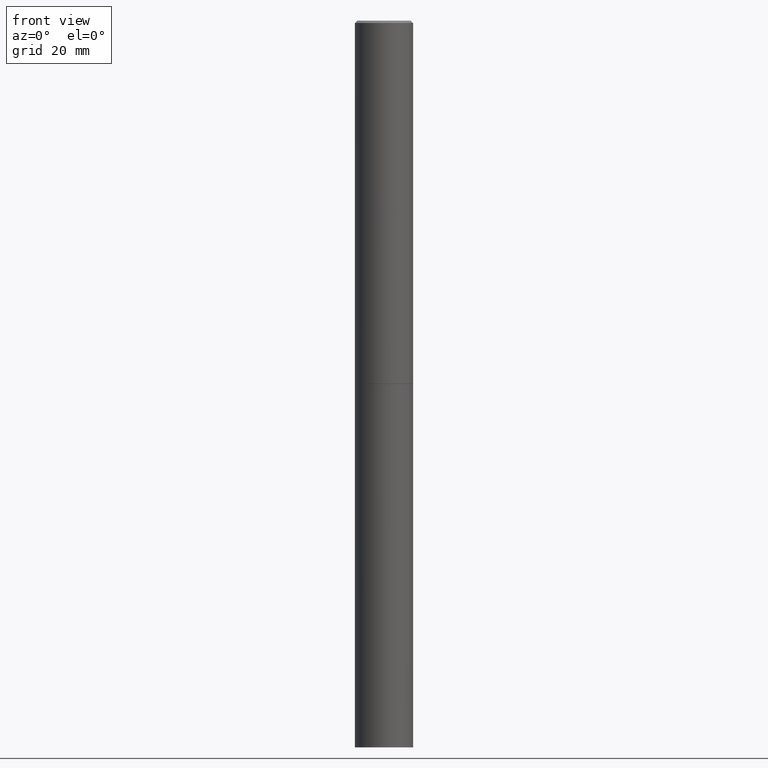
[diagram: clean part render]
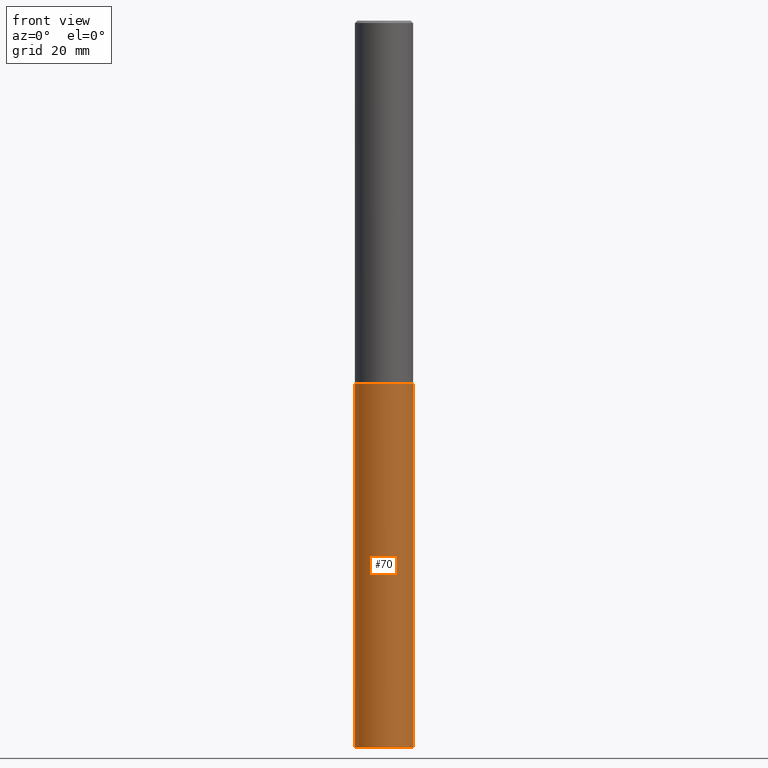
[diagram: same view with one face highlighted and labeled with its STEP entity id]
A machine part, front view. The second image highlights one B-rep face of the part: STEP entity #70.
In plain terms, the highlighted cylindrical surface (edge-blend (fillet) strip) has radius 5.9995 mm, axis along (-0, 0, 1).
Its self-contained STEP definition (entity closure, byte-faithful):
#6 = LINE ( 'NONE', #58, #337 ) ;
#10 = CARTESIAN_POINT ( 'NONE',  ( -0.2361999999999999933, 1.678301941865356591E-15, -1.161852468318208757E-29 ) ) ;
#20 = CARTESIAN_POINT ( 'NONE',  ( 7.220735744022852519E-29, -1.030929694920215502E-14, -2.952700000000000102 ) ) ;
#24 = DIRECTION ( 'NONE',  ( 1.000000000000000000, -6.982962677686266711E-15, 4.876176775795936353E-29 ) ) ;
#42 = CIRCLE ( 'NONE', #72, 0.2361999999999999933 ) ;
#43 = VERTEX_POINT ( 'NONE', #158 ) ;
#45 = FACE_OUTER_BOUND ( 'NONE', #73, .T. ) ;
#58 = CARTESIAN_POINT ( 'NONE',  ( 0.2361999999999999933, -1.649375784469496131E-15, 1.151752954443000088E-29 ) ) ;
#66 = CARTESIAN_POINT ( 'NONE',  ( 0.2361999999999999933, -1.195867273367164996E-14, -2.952700000000000102 ) ) ;
#70 = ADVANCED_FACE ( 'NONE', ( #45 ), #142, .T. ) ;
#72 = AXIS2_PLACEMENT_3D ( 'NONE', #146, #92, #124 ) ;
#73 = EDGE_LOOP ( 'NONE', ( #294, #321, #240, #104 ) ) ;
#79 = DIRECTION ( 'NONE',  ( -2.445468806185136597E-29, 3.491481338843145583E-15, 1.000000000000000000 ) ) ;
#90 = DIRECTION ( 'NONE',  ( -2.445468806185136877E-29, 3.491481338843145188E-15, 1.000000000000000000 ) ) ;
#92 = DIRECTION ( 'NONE',  ( -2.445468806185136597E-29, 3.491481338843145583E-15, 1.000000000000000000 ) ) ;
#104 = ORIENTED_EDGE ( 'NONE', *, *, #215, .F. ) ;
#108 = VECTOR ( 'NONE', #90, 39.37007874015748143 ) ;
#124 = DIRECTION ( 'NONE',  ( 1.000000000000000000, -6.982962677686273021E-15, 0.000000000000000000 ) ) ;
#134 = AXIS2_PLACEMENT_3D ( 'NONE', #20, #245, #169 ) ;
#142 = CYLINDRICAL_SURFACE ( 'NONE', #279, 0.2361999999999999933 ) ;
#143 = EDGE_CURVE ( 'NONE', #270, #236, #6, .T. ) ;
#146 = CARTESIAN_POINT ( 'NONE',  ( 1.444171603492632270E-28, -2.061894304653819197E-14, -5.905499999999999972 ) ) ;
#158 = CARTESIAN_POINT ( 'NONE',  ( -0.2361999999999999933, -1.378581805600481631E-14, -2.952700000000000102 ) ) ;
#169 = DIRECTION ( 'NONE',  ( 1.000000000000000000, -6.982962677686265133E-15, 0.000000000000000000 ) ) ;
#180 = CARTESIAN_POINT ( 'NONE',  ( -0.2361999999999999933, -1.378581805600481631E-14, -5.905499999999999972 ) ) ;
#215 = EDGE_CURVE ( 'NONE', #43, #236, #293, .T. ) ;
#233 = EDGE_CURVE ( 'NONE', #295, #270, #42, .T. ) ;
#236 = VERTEX_POINT ( 'NONE', #66 ) ;
#240 = ORIENTED_EDGE ( 'NONE', *, *, #143, .T. ) ;
#245 = DIRECTION ( 'NONE',  ( -2.445468806185136597E-29, 3.491481338843145583E-15, 1.000000000000000000 ) ) ;
#251 = CARTESIAN_POINT ( 'NONE',  ( 0.000000000000000000, 0.000000000000000000, 0.000000000000000000 ) ) ;
#270 = VERTEX_POINT ( 'NONE', #318 ) ;
#279 = AXIS2_PLACEMENT_3D ( 'NONE', #251, #79, #24 ) ;
#293 = CIRCLE ( 'NONE', #134, 0.2361999999999999933 ) ;
#294 = ORIENTED_EDGE ( 'NONE', *, *, #360, .F. ) ;
#295 = VERTEX_POINT ( 'NONE', #180 ) ;
#310 = DIRECTION ( 'NONE',  ( -2.445468806185136877E-29, 3.491481338843145188E-15, 1.000000000000000000 ) ) ;
#318 = CARTESIAN_POINT ( 'NONE',  ( 0.2361999999999999933, -2.226831883100769165E-14, -5.905499999999999972 ) ) ;
#320 = LINE ( 'NONE', #10, #108 ) ;
#321 = ORIENTED_EDGE ( 'NONE', *, *, #233, .T. ) ;
#337 = VECTOR ( 'NONE', #310, 39.37007874015748143 ) ;
#360 = EDGE_CURVE ( 'NONE', #295, #43, #320, .T. ) ;